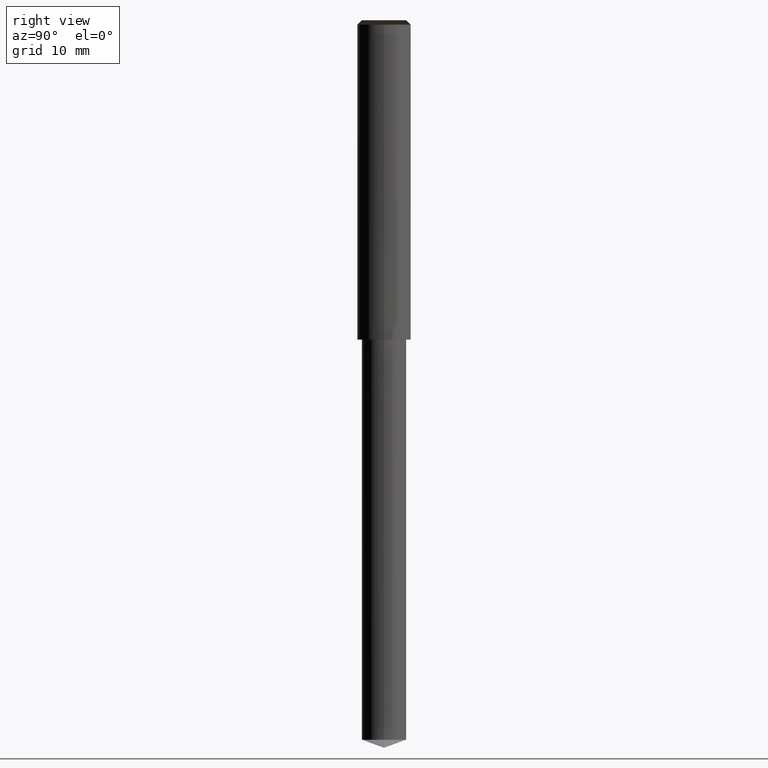
[diagram: clean part render]
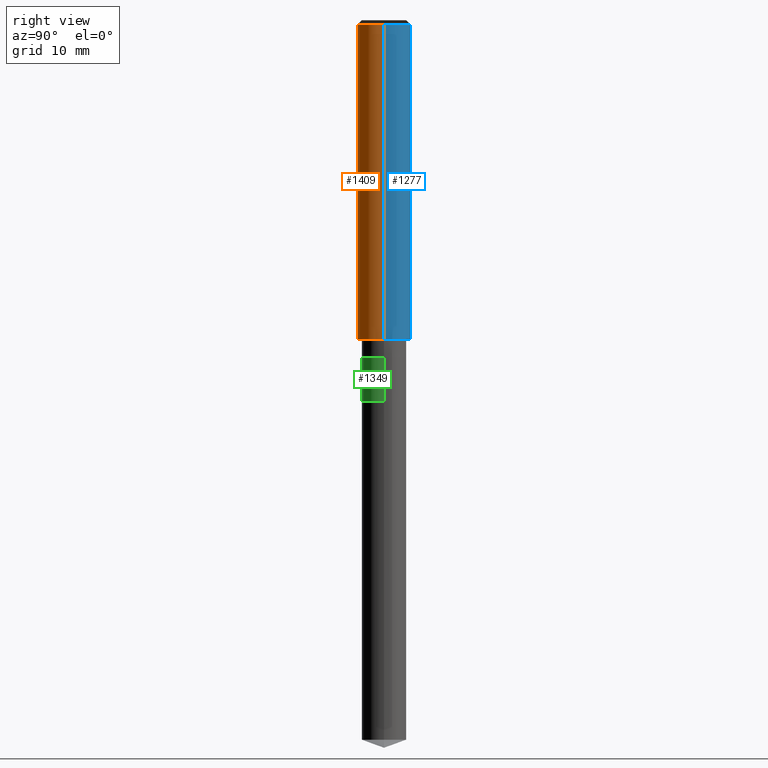
[diagram: same view with three faces highlighted in distinct colors, each labeled with its STEP entity id]
A machine part, right view with three faces highlighted in distinct colors.
Their STEP definitions:

[orange] entity #1409 — the highlighted face is a freeform B-spline surface patch.
#1038=CARTESIAN_POINT('',(3.0,0.0,0.0));
#1042=CARTESIAN_POINT('',(-3.0,0.0,0.0));
#1043=CARTESIAN_POINT('',(3.0,0.0,35.5));
#1047=CARTESIAN_POINT('',(-3.0,0.0,35.5));
#1060=CARTESIAN_POINT('',(-3.0,-3.0,0.0));
#1061=CARTESIAN_POINT('',(0.0,-3.0,0.0));
#1062=CARTESIAN_POINT('',(3.0,-3.0,0.0));
#1063=CARTESIAN_POINT('',(-3.0,-3.0,35.5));
#1064=CARTESIAN_POINT('',(0.0,-3.0,35.5));
#1065=CARTESIAN_POINT('',(3.0,-3.0,35.5));
#1390=(
BOUNDED_SURFACE()
B_SPLINE_SURFACE(1,2,(
(#1042,#1060,#1061,#1062,#1038),
(#1047,#1063,#1064,#1065,#1043)
), .UNSPECIFIED.,.F.,.F.,.F.)
B_SPLINE_SURFACE_WITH_KNOTS((2,2),(3,2,3),(
0.0,1.0),(
0.0,0.5,1.0), .UNSPECIFIED.)
GEOMETRIC_REPRESENTATION_ITEM()
RATIONAL_B_SPLINE_SURFACE(((1.0,0.707106781187,1.0,0.707106781187,1.0),
(1.0,0.707106781187,1.0,0.707106781187,1.0)
))
REPRESENTATION_ITEM('')
SURFACE()
);
#1391=(
BOUNDED_CURVE()
B_SPLINE_CURVE(2,(#1038,#1062,#1061,#1060,#1042),.UNSPECIFIED.,.F.,.F.)
B_SPLINE_CURVE_WITH_KNOTS((3,2,3),
(0.0,0.5,1.0),.UNSPECIFIED.)
CURVE()
GEOMETRIC_REPRESENTATION_ITEM()
RATIONAL_B_SPLINE_CURVE((1.0,0.707106781187,1.0,0.707106781187,1.0))
REPRESENTATION_ITEM('')
);
#1392=(
BOUNDED_CURVE()
B_SPLINE_CURVE(1,(#1042,#1047),.UNSPECIFIED.,.F.,.F.)
B_SPLINE_CURVE_WITH_KNOTS((2,2),
(0.0,1.0),.UNSPECIFIED.)
CURVE()
GEOMETRIC_REPRESENTATION_ITEM()
RATIONAL_B_SPLINE_CURVE((1.0,1.0))
REPRESENTATION_ITEM('')
);
#1393=(
BOUNDED_CURVE()
B_SPLINE_CURVE(2,(#1047,#1063,#1064,#1065,#1043),.UNSPECIFIED.,.F.,.F.)
B_SPLINE_CURVE_WITH_KNOTS((3,2,3),
(0.0,0.5,1.0),.UNSPECIFIED.)
CURVE()
GEOMETRIC_REPRESENTATION_ITEM()
RATIONAL_B_SPLINE_CURVE((1.0,0.707106781187,1.0,0.707106781187,1.0))
REPRESENTATION_ITEM('')
);
#1394=(
BOUNDED_CURVE()
B_SPLINE_CURVE(1,(#1043,#1038),.UNSPECIFIED.,.F.,.F.)
B_SPLINE_CURVE_WITH_KNOTS((2,2),
(0.0,1.0),.UNSPECIFIED.)
CURVE()
GEOMETRIC_REPRESENTATION_ITEM()
RATIONAL_B_SPLINE_CURVE((1.0,1.0))
REPRESENTATION_ITEM('')
);
#1395=VERTEX_POINT('',#1038);
#1396=VERTEX_POINT('',#1042);
#1397=VERTEX_POINT('',#1043);
#1398=VERTEX_POINT('',#1047);
#1399=EDGE_CURVE('',#1395,#1396,#1391,.T.);
#1400=EDGE_CURVE('',#1396,#1398,#1392,.T.);
#1401=EDGE_CURVE('',#1398,#1397,#1393,.T.);
#1402=EDGE_CURVE('',#1397,#1395,#1394,.T.);
#1403=ORIENTED_EDGE('',*,*,#1399,.T.);
#1404=ORIENTED_EDGE('',*,*,#1400,.T.);
#1405=ORIENTED_EDGE('',*,*,#1401,.T.);
#1406=ORIENTED_EDGE('',*,*,#1402,.T.);
#1407=EDGE_LOOP('',(#1403,#1404,#1405,#1406));
#1408=FACE_OUTER_BOUND('',#1407,.T.);
#1409=ADVANCED_FACE('',(#1408),#1390,.T.);

[blue] entity #1277 — the highlighted face is a freeform B-spline surface patch.
#1038=CARTESIAN_POINT('',(3.0,0.0,0.0));
#1039=CARTESIAN_POINT('',(3.0,3.0,0.0));
#1040=CARTESIAN_POINT('',(0.0,3.0,0.0));
#1041=CARTESIAN_POINT('',(-3.0,3.0,0.0));
#1042=CARTESIAN_POINT('',(-3.0,0.0,0.0));
#1043=CARTESIAN_POINT('',(3.0,0.0,35.5));
#1044=CARTESIAN_POINT('',(3.0,3.0,35.5));
#1045=CARTESIAN_POINT('',(0.0,3.0,35.5));
#1046=CARTESIAN_POINT('',(-3.0,3.0,35.5));
#1047=CARTESIAN_POINT('',(-3.0,0.0,35.5));
#1258=(
BOUNDED_SURFACE()
B_SPLINE_SURFACE(1,2,(
(#1038,#1039,#1040,#1041,#1042),
(#1043,#1044,#1045,#1046,#1047)
), .UNSPECIFIED.,.F.,.F.,.F.)
B_SPLINE_SURFACE_WITH_KNOTS((2,2),(3,2,3),(
0.0,1.0),(
0.0,0.5,1.0), .UNSPECIFIED.)
GEOMETRIC_REPRESENTATION_ITEM()
RATIONAL_B_SPLINE_SURFACE(((1.0,0.707106781187,1.0,0.707106781187,1.0),
(1.0,0.707106781187,1.0,0.707106781187,1.0)
))
REPRESENTATION_ITEM('')
SURFACE()
);
#1259=(
BOUNDED_CURVE()
B_SPLINE_CURVE(2,(#1042,#1041,#1040,#1039,#1038),.UNSPECIFIED.,.F.,.F.)
B_SPLINE_CURVE_WITH_KNOTS((3,2,3),
(0.0,0.5,1.0),.UNSPECIFIED.)
CURVE()
GEOMETRIC_REPRESENTATION_ITEM()
RATIONAL_B_SPLINE_CURVE((1.0,0.707106781187,1.0,0.707106781187,1.0))
REPRESENTATION_ITEM('')
);
#1260=(
BOUNDED_CURVE()
B_SPLINE_CURVE(1,(#1038,#1043),.UNSPECIFIED.,.F.,.F.)
B_SPLINE_CURVE_WITH_KNOTS((2,2),
(0.0,1.0),.UNSPECIFIED.)
CURVE()
GEOMETRIC_REPRESENTATION_ITEM()
RATIONAL_B_SPLINE_CURVE((1.0,1.0))
REPRESENTATION_ITEM('')
);
#1261=(
BOUNDED_CURVE()
B_SPLINE_CURVE(2,(#1043,#1044,#1045,#1046,#1047),.UNSPECIFIED.,.F.,.F.)
B_SPLINE_CURVE_WITH_KNOTS((3,2,3),
(0.0,0.5,1.0),.UNSPECIFIED.)
CURVE()
GEOMETRIC_REPRESENTATION_ITEM()
RATIONAL_B_SPLINE_CURVE((1.0,0.707106781187,1.0,0.707106781187,1.0))
REPRESENTATION_ITEM('')
);
#1262=(
BOUNDED_CURVE()
B_SPLINE_CURVE(1,(#1047,#1042),.UNSPECIFIED.,.F.,.F.)
B_SPLINE_CURVE_WITH_KNOTS((2,2),
(0.0,1.0),.UNSPECIFIED.)
CURVE()
GEOMETRIC_REPRESENTATION_ITEM()
RATIONAL_B_SPLINE_CURVE((1.0,1.0))
REPRESENTATION_ITEM('')
);
#1263=VERTEX_POINT('',#1038);
#1264=VERTEX_POINT('',#1042);
#1265=VERTEX_POINT('',#1043);
#1266=VERTEX_POINT('',#1047);
#1267=EDGE_CURVE('',#1264,#1263,#1259,.T.);
#1268=EDGE_CURVE('',#1263,#1265,#1260,.T.);
#1269=EDGE_CURVE('',#1265,#1266,#1261,.T.);
#1270=EDGE_CURVE('',#1266,#1264,#1262,.T.);
#1271=ORIENTED_EDGE('',*,*,#1267,.T.);
#1272=ORIENTED_EDGE('',*,*,#1268,.T.);
#1273=ORIENTED_EDGE('',*,*,#1269,.T.);
#1274=ORIENTED_EDGE('',*,*,#1270,.T.);
#1275=EDGE_LOOP('',(#1271,#1272,#1273,#1274));
#1276=FACE_OUTER_BOUND('',#1275,.T.);
#1277=ADVANCED_FACE('',(#1276),#1258,.T.);

[green] entity #1349 — the highlighted face is a freeform B-spline surface patch.
#1016=CARTESIAN_POINT('',(2.5,0.0,-7.0));
#1020=CARTESIAN_POINT('',(-2.5,0.0,-7.0));
#1025=CARTESIAN_POINT('',(-2.5,-2.5,-7.0));
#1026=CARTESIAN_POINT('',(0.0,-2.5,-7.0));
#1027=CARTESIAN_POINT('',(2.5,-2.5,-7.0));
#1028=CARTESIAN_POINT('',(2.5,0.0,-2.0));
#1032=CARTESIAN_POINT('',(-2.5,0.0,-2.0));
#1054=CARTESIAN_POINT('',(-2.5,-2.5,-2.0));
#1055=CARTESIAN_POINT('',(0.0,-2.5,-2.0));
#1056=CARTESIAN_POINT('',(2.5,-2.5,-2.0));
#1330=(
BOUNDED_SURFACE()
B_SPLINE_SURFACE(1,2,(
(#1020,#1025,#1026,#1027,#1016),
(#1032,#1054,#1055,#1056,#1028)
), .UNSPECIFIED.,.F.,.F.,.F.)
B_SPLINE_SURFACE_WITH_KNOTS((2,2),(3,2,3),(
0.0,1.0),(
0.0,0.5,1.0), .UNSPECIFIED.)
GEOMETRIC_REPRESENTATION_ITEM()
RATIONAL_B_SPLINE_SURFACE(((1.0,0.707106781187,1.0,0.707106781187,1.0),
(1.0,0.707106781187,1.0,0.707106781187,1.0)
))
REPRESENTATION_ITEM('')
SURFACE()
);
#1331=(
BOUNDED_CURVE()
B_SPLINE_CURVE(2,(#1016,#1027,#1026,#1025,#1020),.UNSPECIFIED.,.F.,.F.)
B_SPLINE_CURVE_WITH_KNOTS((3,2,3),
(0.0,0.5,1.0),.UNSPECIFIED.)
CURVE()
GEOMETRIC_REPRESENTATION_ITEM()
RATIONAL_B_SPLINE_CURVE((1.0,0.707106781187,1.0,0.707106781187,1.0))
REPRESENTATION_ITEM('')
);
#1332=(
BOUNDED_CURVE()
B_SPLINE_CURVE(1,(#1020,#1032),.UNSPECIFIED.,.F.,.F.)
B_SPLINE_CURVE_WITH_KNOTS((2,2),
(0.0,1.0),.UNSPECIFIED.)
CURVE()
GEOMETRIC_REPRESENTATION_ITEM()
RATIONAL_B_SPLINE_CURVE((1.0,1.0))
REPRESENTATION_ITEM('')
);
#1333=(
BOUNDED_CURVE()
B_SPLINE_CURVE(2,(#1032,#1054,#1055,#1056,#1028),.UNSPECIFIED.,.F.,.F.)
B_SPLINE_CURVE_WITH_KNOTS((3,2,3),
(0.0,0.5,1.0),.UNSPECIFIED.)
CURVE()
GEOMETRIC_REPRESENTATION_ITEM()
RATIONAL_B_SPLINE_CURVE((1.0,0.707106781187,1.0,0.707106781187,1.0))
REPRESENTATION_ITEM('')
);
#1334=(
BOUNDED_CURVE()
B_SPLINE_CURVE(1,(#1028,#1016),.UNSPECIFIED.,.F.,.F.)
B_SPLINE_CURVE_WITH_KNOTS((2,2),
(0.0,1.0),.UNSPECIFIED.)
CURVE()
GEOMETRIC_REPRESENTATION_ITEM()
RATIONAL_B_SPLINE_CURVE((1.0,1.0))
REPRESENTATION_ITEM('')
);
#1335=VERTEX_POINT('',#1016);
#1336=VERTEX_POINT('',#1020);
#1337=VERTEX_POINT('',#1028);
#1338=VERTEX_POINT('',#1032);
#1339=EDGE_CURVE('',#1335,#1336,#1331,.T.);
#1340=EDGE_CURVE('',#1336,#1338,#1332,.T.);
#1341=EDGE_CURVE('',#1338,#1337,#1333,.T.);
#1342=EDGE_CURVE('',#1337,#1335,#1334,.T.);
#1343=ORIENTED_EDGE('',*,*,#1339,.T.);
#1344=ORIENTED_EDGE('',*,*,#1340,.T.);
#1345=ORIENTED_EDGE('',*,*,#1341,.T.);
#1346=ORIENTED_EDGE('',*,*,#1342,.T.);
#1347=EDGE_LOOP('',(#1343,#1344,#1345,#1346));
#1348=FACE_OUTER_BOUND('',#1347,.T.);
#1349=ADVANCED_FACE('',(#1348),#1330,.T.);